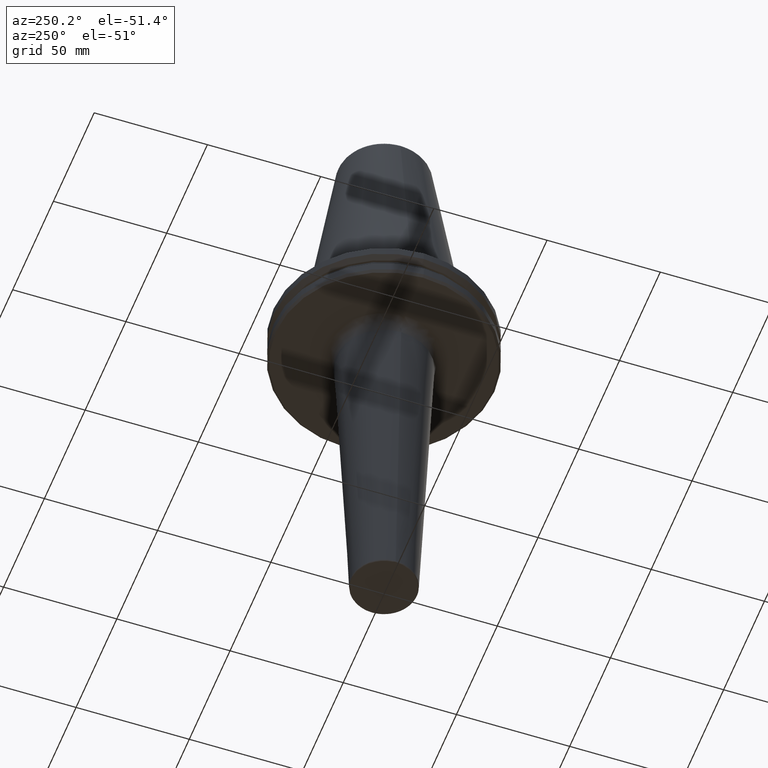
[diagram: clean part render]
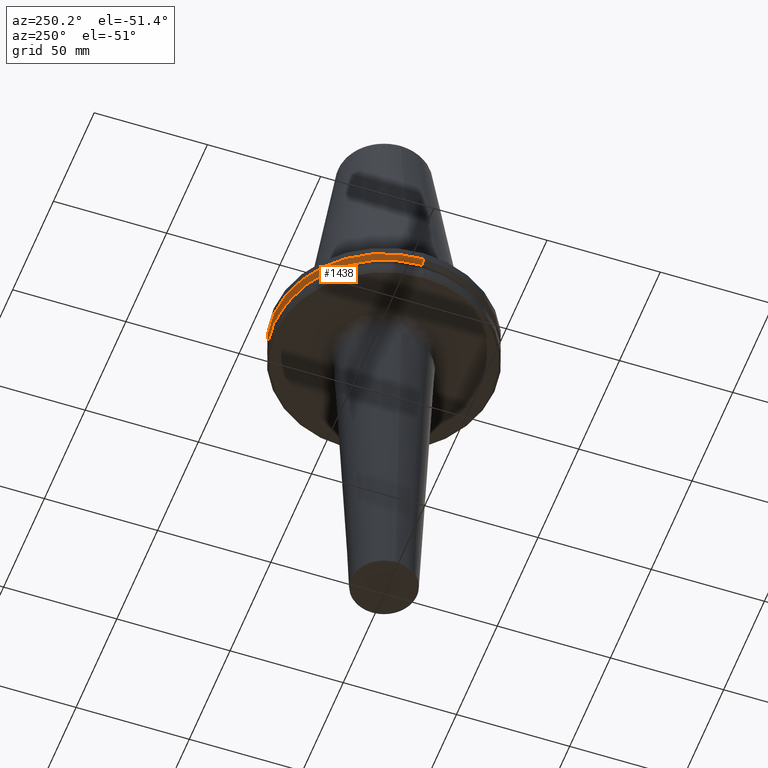
[diagram: same view with one face highlighted and labeled with its STEP entity id]
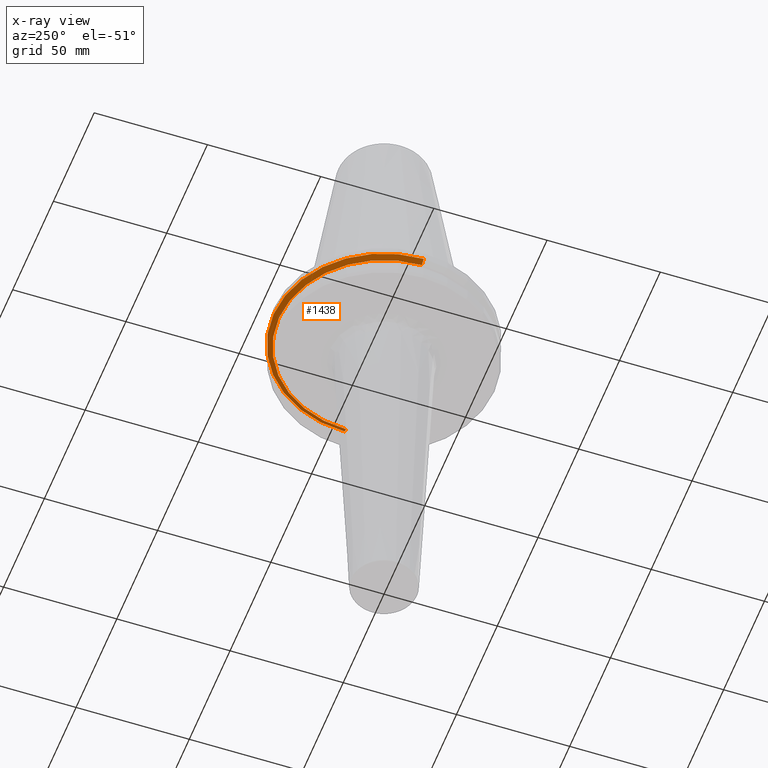
[diagram: x-ray of the same camera — body ghosted, the highlighted face saturated]
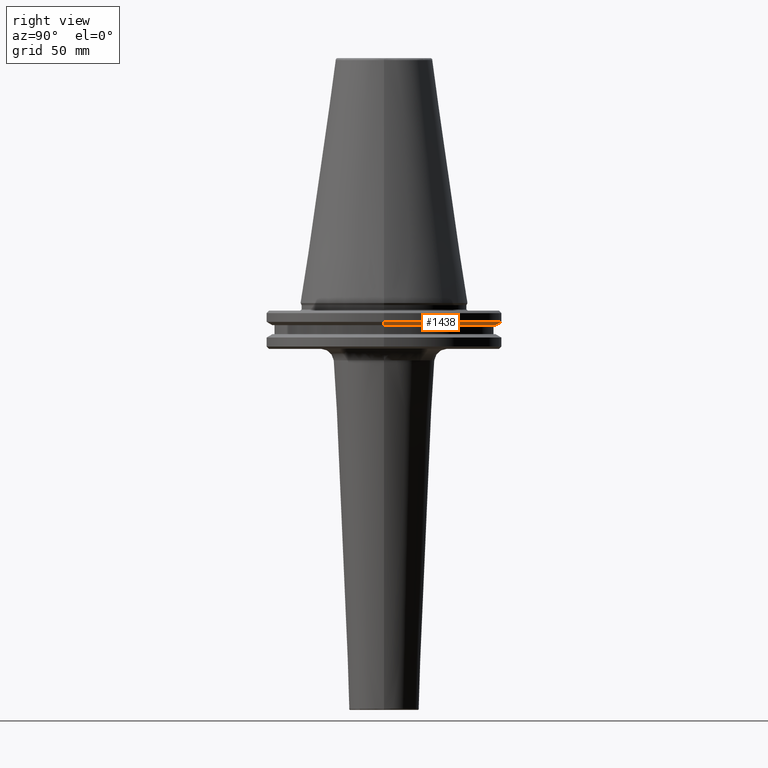
[diagram: same view with one face highlighted and labeled with its STEP entity id]
A machine part, auxiliary view. The second image highlights one B-rep face of the part: STEP entity #1438.
The next image is the same camera in x-ray: the body ghosted, the highlighted face saturated — about 1% of this face is hidden behind the body in this view.
A second angle (right view) of the same face is appended — the face is thin or edge-on in the first view.
In plain terms, the highlighted conical surface has half-angle 60 deg.
Its self-contained STEP definition (entity closure, byte-faithful):
#62 = EDGE_LOOP ( 'NONE', ( #529, #613, #664, #791 ) ) ;
#186 = CARTESIAN_POINT ( 'NONE',  ( -46.37259526419102000, 5.824579090844035300E-015, -9.224999999999926800 ) ) ;
#301 = DIRECTION ( 'NONE',  ( 1.000000000000000000, 0.0000000000000000000, 0.0000000000000000000 ) ) ;
#303 = DIRECTION ( 'NONE',  ( 0.0000000000000000000, 0.0000000000000000000, 1.000000000000000000 ) ) ;
#307 = CARTESIAN_POINT ( 'NONE',  ( 0.0000000000000000000, 0.0000000000000000000, -7.852404735808352000 ) ) ;
#413 = CARTESIAN_POINT ( 'NONE',  ( 48.75000000000000700, 0.0000000000000000000, -7.852404735808348400 ) ) ;
#414 = VERTEX_POINT ( 'NONE', #1451 ) ;
#473 = AXIS2_PLACEMENT_3D ( 'NONE', #992, #1074, #1049 ) ;
#529 = ORIENTED_EDGE ( 'NONE', *, *, #1057, .F. ) ;
#613 = ORIENTED_EDGE ( 'NONE', *, *, #1069, .T. ) ;
#616 = DIRECTION ( 'NONE',  ( 0.8660254037844377100, 0.0000000000000000000, 0.5000000000000016700 ) ) ;
#660 = CARTESIAN_POINT ( 'NONE',  ( -48.75000000000000000, 5.970153145843347100E-015, -7.852404735808352000 ) ) ;
#664 = ORIENTED_EDGE ( 'NONE', *, *, #1119, .F. ) ;
#670 = CONICAL_SURFACE ( 'NONE', #473, 48.75000000000000700, 1.047197551196595900 ) ;
#717 = EDGE_CURVE ( 'NONE', #414, #1363, #1231, .T. ) ;
#754 = FACE_OUTER_BOUND ( 'NONE', #62, .T. ) ;
#791 = ORIENTED_EDGE ( 'NONE', *, *, #717, .F. ) ;
#875 = VERTEX_POINT ( 'NONE', #660 ) ;
#937 = CIRCLE ( 'NONE', #1431, 48.75000000000000000 ) ;
#939 = VECTOR ( 'NONE', #1168, 1000.000000000000000 ) ;
#944 = LINE ( 'NONE', #1142, #939 ) ;
#977 = CIRCLE ( 'NONE', #987, 46.37259526419102000 ) ;
#987 = AXIS2_PLACEMENT_3D ( 'NONE', #1021, #1018, #1008 ) ;
#992 = CARTESIAN_POINT ( 'NONE',  ( 0.0000000000000000000, 0.0000000000000000000, -7.852404735808348400 ) ) ;
#1008 = DIRECTION ( 'NONE',  ( -1.000000000000000000, 0.0000000000000000000, 0.0000000000000000000 ) ) ;
#1018 = DIRECTION ( 'NONE',  ( -0.0000000000000000000, -0.0000000000000000000, -1.000000000000000000 ) ) ;
#1021 = CARTESIAN_POINT ( 'NONE',  ( 0.0000000000000000000, 0.0000000000000000000, -9.224999999999926800 ) ) ;
#1049 = DIRECTION ( 'NONE',  ( 1.000000000000000000, 0.0000000000000000000, 0.0000000000000000000 ) ) ;
#1057 = EDGE_CURVE ( 'NONE', #1439, #414, #977, .T. ) ;
#1069 = EDGE_CURVE ( 'NONE', #1439, #875, #944, .T. ) ;
#1074 = DIRECTION ( 'NONE',  ( 0.0000000000000000000, 0.0000000000000000000, 1.000000000000000000 ) ) ;
#1111 = CARTESIAN_POINT ( 'NONE',  ( 48.75000000000000000, 0.0000000000000000000, -7.852404735808352000 ) ) ;
#1119 = EDGE_CURVE ( 'NONE', #1363, #875, #937, .T. ) ;
#1142 = CARTESIAN_POINT ( 'NONE',  ( -48.75000000000000700, 5.970153145843347900E-015, -7.852404735808348400 ) ) ;
#1168 = DIRECTION ( 'NONE',  ( -0.8660254037844377100, 1.060575238724905800E-016, 0.5000000000000016700 ) ) ;
#1212 = VECTOR ( 'NONE', #616, 1000.000000000000000 ) ;
#1231 = LINE ( 'NONE', #413, #1212 ) ;
#1363 = VERTEX_POINT ( 'NONE', #1111 ) ;
#1431 = AXIS2_PLACEMENT_3D ( 'NONE', #307, #303, #301 ) ;
#1438 = ADVANCED_FACE ( 'NONE', ( #754 ), #670, .T. ) ;
#1439 = VERTEX_POINT ( 'NONE', #186 ) ;
#1451 = CARTESIAN_POINT ( 'NONE',  ( 46.37259526419102000, 0.0000000000000000000, -9.224999999999926800 ) ) ;